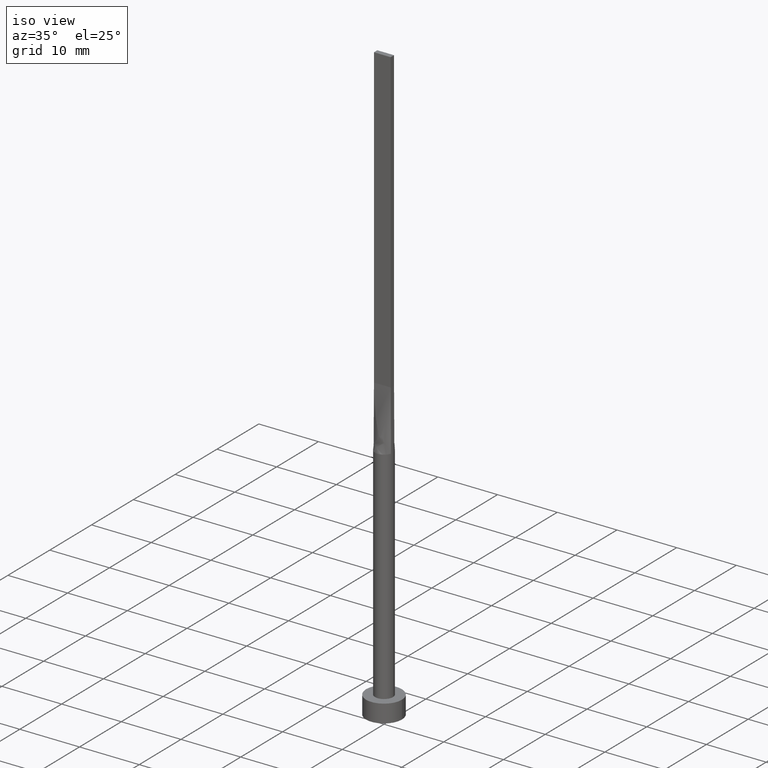
[diagram: clean part render]
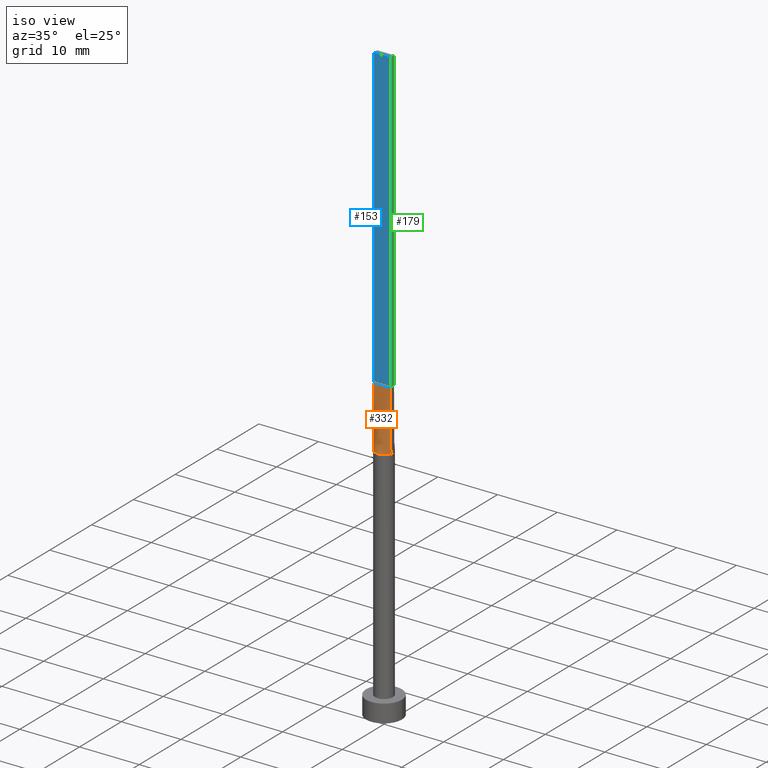
[diagram: same view with three faces highlighted in distinct colors, each labeled with its STEP entity id]
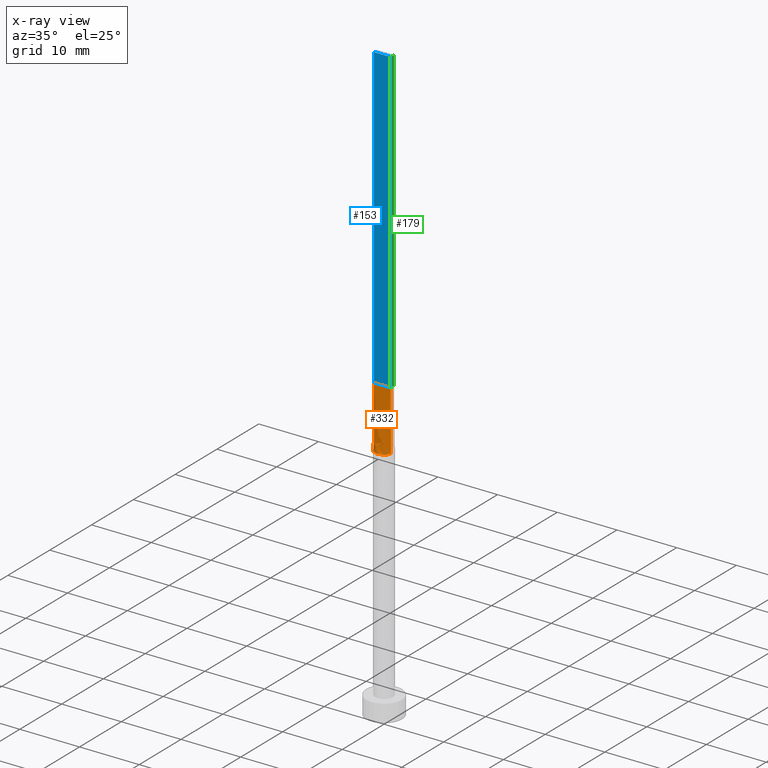
[diagram: x-ray of the same camera — body ghosted, the three highlighted faces saturated]
A machine part, iso view with three faces highlighted in distinct colors.
The next image is the same camera in x-ray (body ghosted, the three faces saturated) — at least one of them is partly hidden behind the body in this view.
Their STEP definitions:

[orange] entity #332 — the highlighted face is a freeform B-spline surface patch.
#14 = DIRECTION ( 'NONE',  ( -0.004228551254826029733, 0.001208157501378870997, 0.9999903298081123104 ) ) ;
#20 = VECTOR ( 'NONE', #128, 1000.000000000000000 ) ;
#25 = CARTESIAN_POINT ( 'NONE',  ( -0.8665786268839192896, -1.235433898681764786, 40.00000000000000000 ) ) ;
#35 = LINE ( 'NONE', #215, #401 ) ;
#44 = CARTESIAN_POINT ( 'NONE',  ( 0.8665786268839185125, -1.235433898681766340, 40.00000000000002132 ) ) ;
#60 = CARTESIAN_POINT ( 'NONE',  ( -1.442368678646663405, -0.4121057215347019853, 40.00000000000000000 ) ) ;
#61 = FACE_OUTER_BOUND ( 'NONE', #440, .T. ) ;
#67 = ORIENTED_EDGE ( 'NONE', *, *, #438, .T. ) ;
#70 = CARTESIAN_POINT ( 'NONE',  ( -1.283333333333333437, -0.3999999999999996336, 50.00000000000000000 ) ) ;
#77 = CARTESIAN_POINT ( 'NONE',  ( 1.409267053536706671, -0.5276477295819165247, 40.00000000000000000 ) ) ;
#93 = CARTESIAN_POINT ( 'NONE',  ( 1.421142960730617411, -0.4060408459230334111, 45.00000000000000000 ) ) ;
#94 = DIRECTION ( 'NONE',  ( 0.000000000000000000, 0.000000000000000000, 1.000000000000000000 ) ) ;
#97 = CARTESIAN_POINT ( 'NONE',  ( 1.442393550978850802, -0.4121129214357137083, 40.00000000000000000 ) ) ;
#110 = CARTESIAN_POINT ( 'NONE',  ( 0.1885753531885892564, -1.499999999999999778, 40.00000000000000000 ) ) ;
#121 = CARTESIAN_POINT ( 'NONE',  ( -1.114527776139990323, -1.017390422009413209, 39.99999999999999289 ) ) ;
#127 = CARTESIAN_POINT ( 'NONE',  ( 0.4666666666666663965, -0.3999999999999997446, 50.00000000000000000 ) ) ;
#128 = DIRECTION ( 'NONE',  ( 1.000000000000000000, -5.808225924029488744E-17, 0.000000000000000000 ) ) ;
#130 = LINE ( 'NONE', #526, #20 ) ;
#132 = EDGE_CURVE ( 'NONE', #350, #303, #389, .T. ) ;
#133 = CARTESIAN_POINT ( 'NONE',  ( 1.399999999999999911, -0.3999999999999998002, 50.00000000000000000 ) ) ;
#140 = CARTESIAN_POINT ( 'NONE',  ( 0.000000000000000000, 0.000000000000000000, 40.00000000000000000 ) ) ;
#143 = EDGE_CURVE ( 'NONE', #303, #169, #424, .T. ) ;
#155 = CARTESIAN_POINT ( 'NONE',  ( -0.2333333333333335591, -0.3999999999999996336, 50.00000000000000000 ) ) ;
#158 = ORIENTED_EDGE ( 'NONE', *, *, #143, .T. ) ;
#162 = AXIS2_PLACEMENT_3D ( 'NONE', #140, #94, #324 ) ;
#169 = VERTEX_POINT ( 'NONE', #337 ) ;
#173 = DIRECTION ( 'NONE',  ( -0.004228551254826051417, -0.001208157501378827629, -0.9999903298081123104 ) ) ;
#177 = B_SPLINE_SURFACE_WITH_KNOTS ( 'NONE', 3, 1, ( 
 ( #465, #244 ),
 ( #426, #70 ),
 ( #391, #299 ),
 ( #517, #558 ),
 ( #121, #249 ),
 ( #25, #384 ),
 ( #477, #381 ),
 ( #560, #155 ),
 ( #336, #512 ),
 ( #110, #296 ),
 ( #422, #222 ),
 ( #305, #127 ),
 ( #44, #314 ),
 ( #225, #180 ),
 ( #404, #406 ),
 ( #183, #573 ),
 ( #77, #577 ),
 ( #533, #133 ) ),
 .UNSPECIFIED., .F., .F., .F.,
 ( 4, 2, 2, 2, 2, 2, 2, 2, 4 ),
 ( 2, 2 ),
 ( 0.000000000000000000, 0.1250000000000000833, 0.2500000000000001665, 0.3750000000000001110, 0.5000000000000001110, 0.6250000000000001110, 0.7500000000000000000, 0.8750000000000000000, 1.000000000000000000 ),
 ( 0.000000000000000000, 1.000000000000000000 ),
 .UNSPECIFIED. ) ;
#180 = CARTESIAN_POINT ( 'NONE',  ( 0.8166666666666663188, -0.3999999999999997446, 50.00000000000000000 ) ) ;
#183 = CARTESIAN_POINT ( 'NONE',  ( 1.359280768448766663, -0.6502025712814719638, 40.00000000000000000 ) ) ;
#215 = CARTESIAN_POINT ( 'NONE',  ( -1.421142960730617633, -0.4060408459230329670, 45.00000000000000000 ) ) ;
#222 = CARTESIAN_POINT ( 'NONE',  ( 0.2333333333333330872, -0.3999999999999996891, 50.00000000000000000 ) ) ;
#225 = CARTESIAN_POINT ( 'NONE',  ( 1.114527776139989435, -1.017390422009414541, 40.00000000000000711 ) ) ;
#244 = CARTESIAN_POINT ( 'NONE',  ( -1.399999999999999911, -0.3999999999999996336, 50.00000000000000000 ) ) ;
#249 = CARTESIAN_POINT ( 'NONE',  ( -0.8166666666666664298, -0.3999999999999996336, 50.00000000000000000 ) ) ;
#268 = CARTESIAN_POINT ( 'NONE',  ( -1.399999999999999911, -0.3999999999999996336, 50.00000000000000000 ) ) ;
#296 = CARTESIAN_POINT ( 'NONE',  ( 0.1166666666666663077, -0.3999999999999996336, 50.00000000000000000 ) ) ;
#299 = CARTESIAN_POINT ( 'NONE',  ( -1.166666666666666519, -0.3999999999999996336, 50.00000000000000000 ) ) ;
#303 = VERTEX_POINT ( 'NONE', #97 ) ;
#305 = CARTESIAN_POINT ( 'NONE',  ( 0.7158926189626801939, -1.330660769095147744, 39.99999999999999289 ) ) ;
#314 = CARTESIAN_POINT ( 'NONE',  ( 0.5833333333333329263, -0.3999999999999997446, 50.00000000000000000 ) ) ;
#324 = DIRECTION ( 'NONE',  ( 1.000000000000000000, 0.000000000000000000, 0.000000000000000000 ) ) ;
#332 = ADVANCED_FACE ( 'NONE', ( #61 ), #177, .T. ) ;
#336 = CARTESIAN_POINT ( 'NONE',  ( -0.1885753531885907275, -1.500000000000000000, 40.00000000000000000 ) ) ;
#337 = CARTESIAN_POINT ( 'NONE',  ( 1.399999999999999911, -0.3999999999999998002, 50.00000000000000000 ) ) ;
#350 = VERTEX_POINT ( 'NONE', #60 ) ;
#381 = CARTESIAN_POINT ( 'NONE',  ( -0.4666666666666666186, -0.3999999999999996336, 50.00000000000000000 ) ) ;
#384 = CARTESIAN_POINT ( 'NONE',  ( -0.5833333333333331483, -0.3999999999999996336, 50.00000000000000000 ) ) ;
#389 = CIRCLE ( 'NONE', #162, 1.500000000000000222 ) ;
#391 = CARTESIAN_POINT ( 'NONE',  ( -1.359280768448767551, -0.6502025712814705205, 39.99999999999999289 ) ) ;
#394 = EDGE_CURVE ( 'NONE', #450, #169, #130, .T. ) ;
#401 = VECTOR ( 'NONE', #173, 1000.000000000000000 ) ;
#404 = CARTESIAN_POINT ( 'NONE',  ( 1.212111761082483197, -0.8950936653899579376, 40.00000000000000000 ) ) ;
#406 = CARTESIAN_POINT ( 'NONE',  ( 0.9333333333333330151, -0.3999999999999997446, 50.00000000000000000 ) ) ;
#414 = ORIENTED_EDGE ( 'NONE', *, *, #394, .F. ) ;
#422 = CARTESIAN_POINT ( 'NONE',  ( 0.3767059690781844328, -1.463302066271691571, 40.00000000000000000 ) ) ;
#424 = LINE ( 'NONE', #93, #531 ) ;
#426 = CARTESIAN_POINT ( 'NONE',  ( -1.409267053536706893, -0.5276477295819155255, 39.99999999999999289 ) ) ;
#438 = EDGE_CURVE ( 'NONE', #450, #350, #35, .T. ) ;
#440 = EDGE_LOOP ( 'NONE', ( #452, #158, #414, #67 ) ) ;
#450 = VERTEX_POINT ( 'NONE', #268 ) ;
#452 = ORIENTED_EDGE ( 'NONE', *, *, #132, .T. ) ;
#465 = CARTESIAN_POINT ( 'NONE',  ( -1.442285921461235132, -0.4120816918460664113, 40.00000000000000000 ) ) ;
#477 = CARTESIAN_POINT ( 'NONE',  ( -0.7158926189626813041, -1.330660769095146634, 39.99999999999999289 ) ) ;
#512 = CARTESIAN_POINT ( 'NONE',  ( -0.1166666666666670016, -0.3999999999999996336, 50.00000000000000000 ) ) ;
#517 = CARTESIAN_POINT ( 'NONE',  ( -1.212111761082483863, -0.8950936653899566053, 39.99999999999999289 ) ) ;
#526 = CARTESIAN_POINT ( 'NONE',  ( -1.399999999999999911, -0.3999999999999996336, 50.00000000000000000 ) ) ;
#531 = VECTOR ( 'NONE', #14, 1000.000000000000000 ) ;
#533 = CARTESIAN_POINT ( 'NONE',  ( 1.442285921461234910, -0.4120816918460670220, 40.00000000000000000 ) ) ;
#558 = CARTESIAN_POINT ( 'NONE',  ( -0.9333333333333331261, -0.3999999999999996336, 50.00000000000000000 ) ) ;
#560 = CARTESIAN_POINT ( 'NONE',  ( -0.3767059690781856540, -1.463302066271690904, 40.00000000000000000 ) ) ;
#573 = CARTESIAN_POINT ( 'NONE',  ( 1.166666666666666519, -0.3999999999999997446, 50.00000000000000000 ) ) ;
#577 = CARTESIAN_POINT ( 'NONE',  ( 1.283333333333333215, -0.3999999999999997446, 50.00000000000000000 ) ) ;

[blue] entity #153 — the highlighted planar face has unit normal (0, 1, -0).
#10 = FACE_OUTER_BOUND ( 'NONE', #320, .T. ) ;
#20 = VECTOR ( 'NONE', #128, 1000.000000000000000 ) ;
#49 = EDGE_CURVE ( 'NONE', #267, #169, #248, .T. ) ;
#105 = DIRECTION ( 'NONE',  ( 5.808225924029488744E-17, 1.000000000000000000, -0.000000000000000000 ) ) ;
#128 = DIRECTION ( 'NONE',  ( 1.000000000000000000, -5.808225924029488744E-17, 0.000000000000000000 ) ) ;
#130 = LINE ( 'NONE', #526, #20 ) ;
#139 = LINE ( 'NONE', #543, #170 ) ;
#145 = DIRECTION ( 'NONE',  ( -1.000000000000000000, 5.808225924029488744E-17, 0.000000000000000000 ) ) ;
#153 = ADVANCED_FACE ( 'NONE', ( #10 ), #369, .F. ) ;
#169 = VERTEX_POINT ( 'NONE', #337 ) ;
#170 = VECTOR ( 'NONE', #238, 1000.000000000000000 ) ;
#208 = CARTESIAN_POINT ( 'NONE',  ( 1.399999999999999911, -0.3999999999999998002, 100.0000000000000000 ) ) ;
#211 = ORIENTED_EDGE ( 'NONE', *, *, #373, .F. ) ;
#214 = DIRECTION ( 'NONE',  ( -0.000000000000000000, -0.000000000000000000, -1.000000000000000000 ) ) ;
#238 = DIRECTION ( 'NONE',  ( -0.000000000000000000, -0.000000000000000000, -1.000000000000000000 ) ) ;
#247 = VECTOR ( 'NONE', #214, 1000.000000000000000 ) ;
#248 = LINE ( 'NONE', #208, #247 ) ;
#257 = VECTOR ( 'NONE', #354, 1000.000000000000000 ) ;
#260 = ORIENTED_EDGE ( 'NONE', *, *, #49, .F. ) ;
#267 = VERTEX_POINT ( 'NONE', #298 ) ;
#268 = CARTESIAN_POINT ( 'NONE',  ( -1.399999999999999911, -0.3999999999999996336, 50.00000000000000000 ) ) ;
#271 = CARTESIAN_POINT ( 'NONE',  ( -1.399999999999999911, -0.3999999999999996336, 100.0000000000000000 ) ) ;
#289 = CARTESIAN_POINT ( 'NONE',  ( -1.399999999999999911, -0.3999999999999996336, 100.0000000000000000 ) ) ;
#298 = CARTESIAN_POINT ( 'NONE',  ( 1.399999999999999911, -0.3999999999999998002, 100.0000000000000000 ) ) ;
#320 = EDGE_LOOP ( 'NONE', ( #481, #260, #211, #397 ) ) ;
#337 = CARTESIAN_POINT ( 'NONE',  ( 1.399999999999999911, -0.3999999999999998002, 50.00000000000000000 ) ) ;
#354 = DIRECTION ( 'NONE',  ( 1.000000000000000000, -5.808225924029488744E-17, 0.000000000000000000 ) ) ;
#369 = PLANE ( 'NONE',  #461 ) ;
#373 = EDGE_CURVE ( 'NONE', #444, #267, #552, .T. ) ;
#394 = EDGE_CURVE ( 'NONE', #450, #169, #130, .T. ) ;
#397 = ORIENTED_EDGE ( 'NONE', *, *, #571, .T. ) ;
#444 = VERTEX_POINT ( 'NONE', #271 ) ;
#450 = VERTEX_POINT ( 'NONE', #268 ) ;
#461 = AXIS2_PLACEMENT_3D ( 'NONE', #544, #105, #145 ) ;
#481 = ORIENTED_EDGE ( 'NONE', *, *, #394, .T. ) ;
#526 = CARTESIAN_POINT ( 'NONE',  ( -1.399999999999999911, -0.3999999999999996336, 50.00000000000000000 ) ) ;
#543 = CARTESIAN_POINT ( 'NONE',  ( -1.399999999999999911, -0.3999999999999996336, 100.0000000000000000 ) ) ;
#544 = CARTESIAN_POINT ( 'NONE',  ( -1.399999999999999911, -0.3999999999999996336, 100.0000000000000000 ) ) ;
#552 = LINE ( 'NONE', #289, #257 ) ;
#571 = EDGE_CURVE ( 'NONE', #444, #450, #139, .T. ) ;

[green] entity #179 — the highlighted planar face has unit normal (-1, -0, 0).
#22 = DIRECTION ( 'NONE',  ( -0.000000000000000000, -0.000000000000000000, -1.000000000000000000 ) ) ;
#34 = ORIENTED_EDGE ( 'NONE', *, *, #115, .T. ) ;
#49 = EDGE_CURVE ( 'NONE', #267, #169, #248, .T. ) ;
#58 = AXIS2_PLACEMENT_3D ( 'NONE', #111, #190, #415 ) ;
#66 = VECTOR ( 'NONE', #226, 1000.000000000000000 ) ;
#74 = VECTOR ( 'NONE', #22, 1000.000000000000000 ) ;
#79 = VERTEX_POINT ( 'NONE', #236 ) ;
#108 = CARTESIAN_POINT ( 'NONE',  ( 1.399999999999999689, 0.4000000000000002442, 100.0000000000000000 ) ) ;
#111 = CARTESIAN_POINT ( 'NONE',  ( 1.399999999999999911, -0.3999999999999998002, 100.0000000000000000 ) ) ;
#115 = EDGE_CURVE ( 'NONE', #169, #79, #366, .T. ) ;
#129 = ORIENTED_EDGE ( 'NONE', *, *, #511, .F. ) ;
#154 = EDGE_CURVE ( 'NONE', #482, #79, #328, .T. ) ;
#169 = VERTEX_POINT ( 'NONE', #337 ) ;
#179 = ADVANCED_FACE ( 'NONE', ( #539 ), #513, .F. ) ;
#190 = DIRECTION ( 'NONE',  ( -1.000000000000000000, -2.710505431213761085E-16, 0.000000000000000000 ) ) ;
#196 = CARTESIAN_POINT ( 'NONE',  ( 1.399999999999999689, 0.4000000000000002442, 100.0000000000000000 ) ) ;
#208 = CARTESIAN_POINT ( 'NONE',  ( 1.399999999999999911, -0.3999999999999998002, 100.0000000000000000 ) ) ;
#214 = DIRECTION ( 'NONE',  ( -0.000000000000000000, -0.000000000000000000, -1.000000000000000000 ) ) ;
#226 = DIRECTION ( 'NONE',  ( -2.710505431213761085E-16, 1.000000000000000000, 0.000000000000000000 ) ) ;
#235 = LINE ( 'NONE', #494, #66 ) ;
#236 = CARTESIAN_POINT ( 'NONE',  ( 1.399999999999999689, 0.4000000000000002442, 50.00000000000000000 ) ) ;
#247 = VECTOR ( 'NONE', #214, 1000.000000000000000 ) ;
#248 = LINE ( 'NONE', #208, #247 ) ;
#267 = VERTEX_POINT ( 'NONE', #298 ) ;
#298 = CARTESIAN_POINT ( 'NONE',  ( 1.399999999999999911, -0.3999999999999998002, 100.0000000000000000 ) ) ;
#328 = LINE ( 'NONE', #108, #74 ) ;
#337 = CARTESIAN_POINT ( 'NONE',  ( 1.399999999999999911, -0.3999999999999998002, 50.00000000000000000 ) ) ;
#366 = LINE ( 'NONE', #542, #572 ) ;
#415 = DIRECTION ( 'NONE',  ( 2.710505431213761085E-16, -1.000000000000000000, 0.000000000000000000 ) ) ;
#482 = VERTEX_POINT ( 'NONE', #196 ) ;
#492 = EDGE_LOOP ( 'NONE', ( #34, #574, #129, #578 ) ) ;
#494 = CARTESIAN_POINT ( 'NONE',  ( 1.399999999999999911, -0.3999999999999998002, 100.0000000000000000 ) ) ;
#500 = DIRECTION ( 'NONE',  ( -2.710505431213761085E-16, 1.000000000000000000, -0.000000000000000000 ) ) ;
#511 = EDGE_CURVE ( 'NONE', #267, #482, #235, .T. ) ;
#513 = PLANE ( 'NONE',  #58 ) ;
#539 = FACE_OUTER_BOUND ( 'NONE', #492, .T. ) ;
#542 = CARTESIAN_POINT ( 'NONE',  ( 1.399999999999999689, 0.4000000000000002442, 50.00000000000000000 ) ) ;
#572 = VECTOR ( 'NONE', #500, 1000.000000000000000 ) ;
#574 = ORIENTED_EDGE ( 'NONE', *, *, #154, .F. ) ;
#578 = ORIENTED_EDGE ( 'NONE', *, *, #49, .T. ) ;